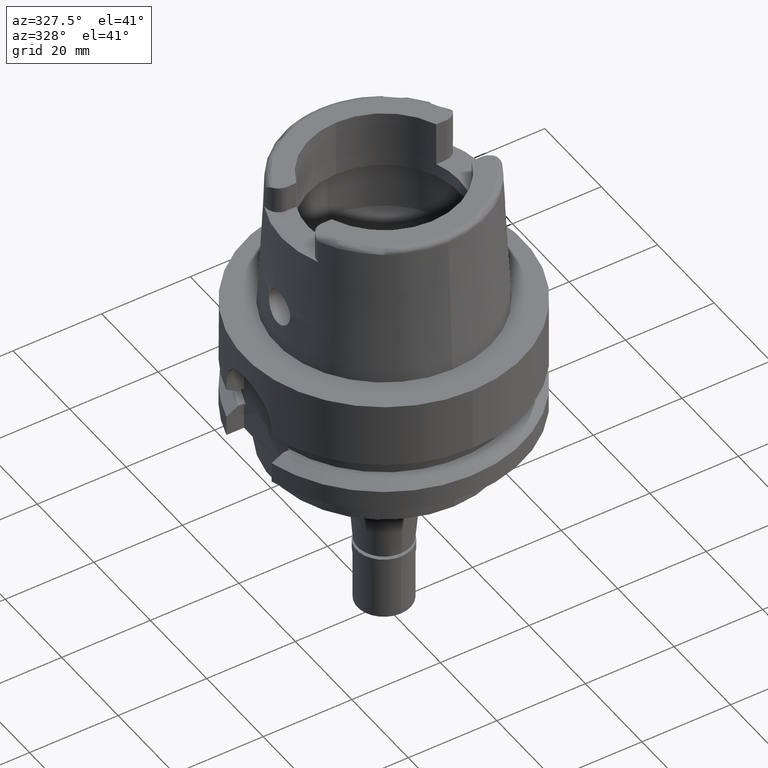
[diagram: clean part render]
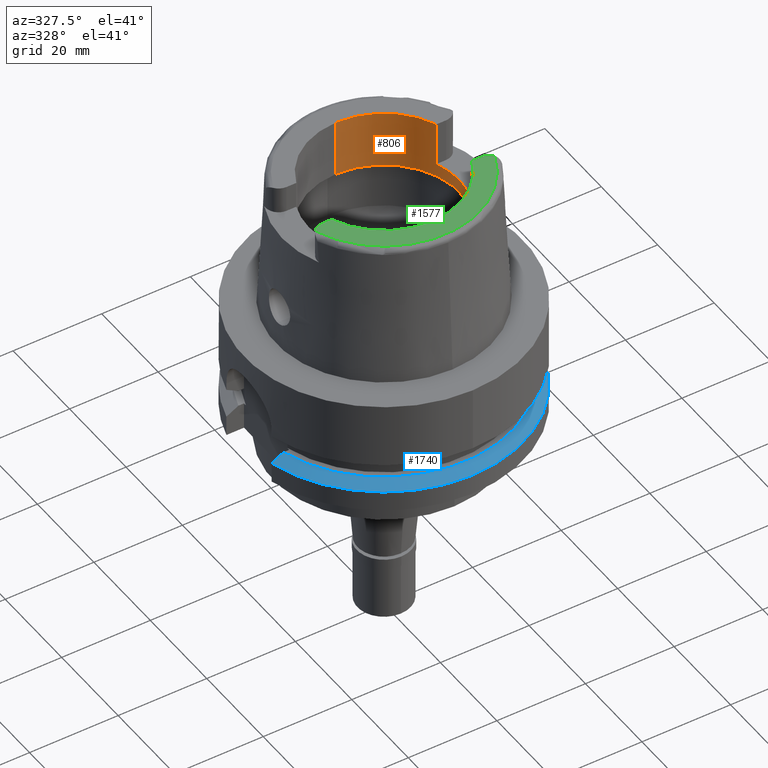
[diagram: same view with three faces highlighted in distinct colors, each labeled with its STEP entity id]
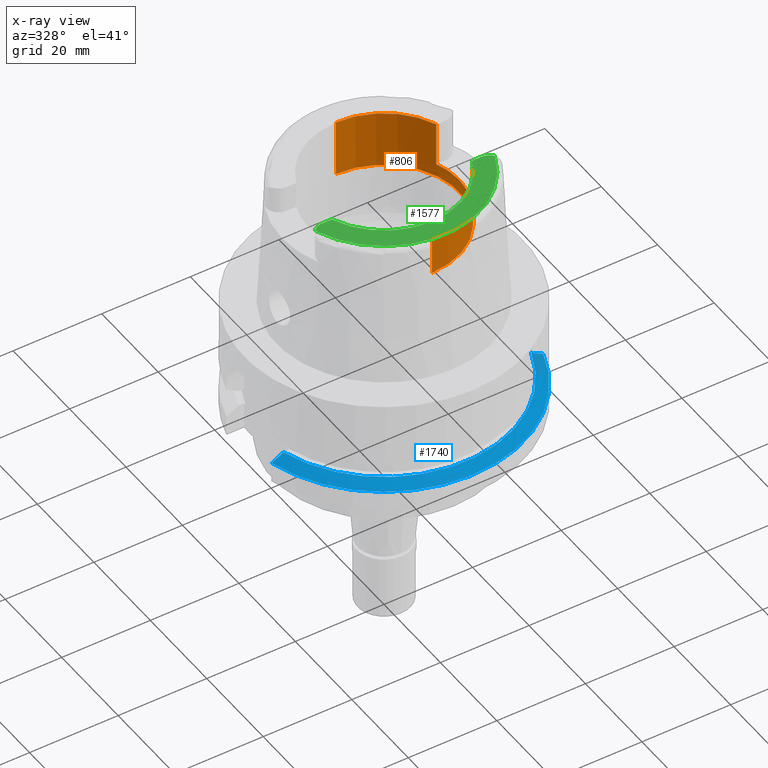
[diagram: x-ray of the same camera — body ghosted, the three highlighted faces saturated]
A machine part, auxiliary view with three faces highlighted in distinct colors.
The next image is the same camera in x-ray (body ghosted, the three faces saturated) — at least one of them is partly hidden behind the body in this view.
Their STEP definitions:

[orange] entity #806 — the highlighted cylindrical surface (partial cylindrical patch) has radius 17 mm, axis along (0, 0, -1).
#138 = VECTOR ( 'NONE', #535, 1000.000000000000000 ) ;
#244 = ORIENTED_EDGE ( 'NONE', *, *, #1883, .F. ) ;
#259 = VERTEX_POINT ( 'NONE', #4073 ) ;
#264 = DIRECTION ( 'NONE',  ( 0.0000000000000000000, 0.0000000000000000000, 1.000000000000000000 ) ) ;
#303 = VERTEX_POINT ( 'NONE', #650 ) ;
#408 = EDGE_CURVE ( 'NONE', #1993, #1226, #767, .T. ) ;
#463 = ORIENTED_EDGE ( 'NONE', *, *, #3265, .F. ) ;
#499 = LINE ( 'NONE', #4810, #5334 ) ;
#535 = DIRECTION ( 'NONE',  ( 0.0000000000000000000, 0.0000000000000000000, -1.000000000000000000 ) ) ;
#650 = CARTESIAN_POINT ( 'NONE',  ( 15.80149043602999903, 6.270000000000000462, 32.00000000000000000 ) ) ;
#688 = CYLINDRICAL_SURFACE ( 'NONE', #4791, 17.00000000000000000 ) ;
#767 = CIRCLE ( 'NONE', #1311, 17.00000000000000000 ) ;
#806 = ADVANCED_FACE ( 'NONE', ( #4630 ), #688, .F. ) ;
#866 = ORIENTED_EDGE ( 'NONE', *, *, #3571, .T. ) ;
#944 = CIRCLE ( 'NONE', #3593, 17.00000000000000000 ) ;
#989 = EDGE_CURVE ( 'NONE', #259, #1993, #499, .T. ) ;
#1075 = CARTESIAN_POINT ( 'NONE',  ( 15.80149043602999903, 6.270000000000000462, 32.00000000000000000 ) ) ;
#1135 = EDGE_CURVE ( 'NONE', #3838, #5256, #2340, .T. ) ;
#1166 = CARTESIAN_POINT ( 'NONE',  ( 0.0000000000000000000, 1.679603085030999862E-14, 32.00000000000000000 ) ) ;
#1222 = LINE ( 'NONE', #4192, #4255 ) ;
#1226 = VERTEX_POINT ( 'NONE', #2720 ) ;
#1311 = AXIS2_PLACEMENT_3D ( 'NONE', #2430, #264, #1894 ) ;
#1592 = DIRECTION ( 'NONE',  ( 0.0000000000000000000, 0.0000000000000000000, -1.000000000000000000 ) ) ;
#1793 = CARTESIAN_POINT ( 'NONE',  ( 0.0000000000000000000, 17.00000000000000000, 32.00000000000000000 ) ) ;
#1883 = EDGE_CURVE ( 'NONE', #3838, #1226, #1222, .T. ) ;
#1894 = DIRECTION ( 'NONE',  ( 0.0000000000000000000, -1.000000000000000000, 0.0000000000000000000 ) ) ;
#1993 = VERTEX_POINT ( 'NONE', #5295 ) ;
#2129 = CARTESIAN_POINT ( 'NONE',  ( 0.0000000000000000000, 1.446675263833000174E-14, 18.99602540378000270 ) ) ;
#2132 = VECTOR ( 'NONE', #4647, 1000.000000000000000 ) ;
#2236 = AXIS2_PLACEMENT_3D ( 'NONE', #3148, #4864, #2382 ) ;
#2237 = DIRECTION ( 'NONE',  ( 0.0000000000000000000, 7.403777974427000140E-14, 1.000000000000000000 ) ) ;
#2263 = CARTESIAN_POINT ( 'NONE',  ( 15.80149043602999903, 6.270000000000000462, 22.00000000000000000 ) ) ;
#2340 = CIRCLE ( 'NONE', #2236, 17.00000000000000000 ) ;
#2382 = DIRECTION ( 'NONE',  ( 0.9294994374136111848, -0.3688235294118045182, 0.0000000000000000000 ) ) ;
#2396 = LINE ( 'NONE', #1075, #138 ) ;
#2430 = CARTESIAN_POINT ( 'NONE',  ( 0.0000000000000000000, 1.679603085030999862E-14, 32.00000000000000000 ) ) ;
#2607 = ORIENTED_EDGE ( 'NONE', *, *, #3478, .F. ) ;
#2665 = CARTESIAN_POINT ( 'NONE',  ( 15.80149043602999903, -6.270000000000000462, 22.00000000000000000 ) ) ;
#2720 = CARTESIAN_POINT ( 'NONE',  ( 15.80149043602999903, -6.270000000000000462, 32.00000000000000000 ) ) ;
#2800 = ORIENTED_EDGE ( 'NONE', *, *, #1135, .T. ) ;
#2905 = LINE ( 'NONE', #3792, #2132 ) ;
#2966 = DIRECTION ( 'NONE',  ( 0.0000000000000000000, 0.0000000000000000000, 1.000000000000000000 ) ) ;
#3034 = ORIENTED_EDGE ( 'NONE', *, *, #3477, .T. ) ;
#3061 = ORIENTED_EDGE ( 'NONE', *, *, #408, .T. ) ;
#3148 = CARTESIAN_POINT ( 'NONE',  ( 0.0000000000000000000, 1.679603085030999862E-14, 22.00000000000000000 ) ) ;
#3265 = EDGE_CURVE ( 'NONE', #303, #5256, #2396, .T. ) ;
#3454 = DIRECTION ( 'NONE',  ( 0.0000000000000000000, 1.000000000000000000, 0.0000000000000000000 ) ) ;
#3477 = EDGE_CURVE ( 'NONE', #303, #4139, #3866, .T. ) ;
#3478 = EDGE_CURVE ( 'NONE', #5453, #4139, #2905, .T. ) ;
#3571 = EDGE_CURVE ( 'NONE', #5453, #259, #944, .T. ) ;
#3593 = AXIS2_PLACEMENT_3D ( 'NONE', #2129, #4731, #3454 ) ;
#3741 = DIRECTION ( 'NONE',  ( 0.0000000000000000000, -1.000000000000000000, 0.0000000000000000000 ) ) ;
#3770 = CARTESIAN_POINT ( 'NONE',  ( 0.0000000000000000000, 1.679603085030999862E-14, 37.15000000000000568 ) ) ;
#3792 = CARTESIAN_POINT ( 'NONE',  ( 0.0000000000000000000, 17.00000000000000000, 18.99602540378000270 ) ) ;
#3817 = EDGE_LOOP ( 'NONE', ( #463, #3034, #2607, #866, #4723, #3061, #244, #2800 ) ) ;
#3838 = VERTEX_POINT ( 'NONE', #2665 ) ;
#3866 = CIRCLE ( 'NONE', #4685, 17.00000000000000000 ) ;
#4073 = CARTESIAN_POINT ( 'NONE',  ( 0.0000000000000000000, -17.00000000000000000, 18.99602540378000270 ) ) ;
#4139 = VERTEX_POINT ( 'NONE', #1793 ) ;
#4163 = DIRECTION ( 'NONE',  ( 0.0000000000000000000, 0.0000000000000000000, 1.000000000000000000 ) ) ;
#4192 = CARTESIAN_POINT ( 'NONE',  ( 15.80149043602999903, -6.270000000000000462, 22.00000000000000000 ) ) ;
#4255 = VECTOR ( 'NONE', #2966, 1000.000000000000000 ) ;
#4340 = CARTESIAN_POINT ( 'NONE',  ( 0.0000000000000000000, 17.00000000000000000, 18.99602540378000270 ) ) ;
#4630 = FACE_OUTER_BOUND ( 'NONE', #3817, .T. ) ;
#4647 = DIRECTION ( 'NONE',  ( 0.0000000000000000000, -7.403777974427000140E-14, 1.000000000000000000 ) ) ;
#4673 = DIRECTION ( 'NONE',  ( 0.9294994374136111848, 0.3688235294118045182, 0.0000000000000000000 ) ) ;
#4685 = AXIS2_PLACEMENT_3D ( 'NONE', #1166, #4163, #4673 ) ;
#4723 = ORIENTED_EDGE ( 'NONE', *, *, #989, .T. ) ;
#4731 = DIRECTION ( 'NONE',  ( 0.0000000000000000000, 0.0000000000000000000, -1.000000000000000000 ) ) ;
#4791 = AXIS2_PLACEMENT_3D ( 'NONE', #3770, #1592, #3741 ) ;
#4810 = CARTESIAN_POINT ( 'NONE',  ( 0.0000000000000000000, -17.00000000000000000, 18.99602540378000270 ) ) ;
#4864 = DIRECTION ( 'NONE',  ( 0.0000000000000000000, 0.0000000000000000000, 1.000000000000000000 ) ) ;
#5256 = VERTEX_POINT ( 'NONE', #2263 ) ;
#5295 = CARTESIAN_POINT ( 'NONE',  ( 0.0000000000000000000, -17.00000000000000000, 32.00000000000000000 ) ) ;
#5334 = VECTOR ( 'NONE', #2237, 1000.000000000000000 ) ;
#5453 = VERTEX_POINT ( 'NONE', #4340 ) ;

[blue] entity #1740 — the highlighted conical surface has half-angle 60 deg.
#61 = B_SPLINE_CURVE_WITH_KNOTS ( 'NONE', 3,
 ( #1988, #2881, #2847, #3734, #1138, #5474 ),
 .UNSPECIFIED., .F., .F.,
 ( 4, 1, 1, 4 ),
 ( 0.0000000000000000000, 0.3333333333333000081, 0.6666666666667000474, 1.000000000000000000 ),
 .UNSPECIFIED. ) ;
#70 = CARTESIAN_POINT ( 'NONE',  ( 30.18691769625000276, -9.000000000000000000, -21.37749907476000288 ) ) ;
#245 = EDGE_CURVE ( 'NONE', #4461, #1420, #586, .T. ) ;
#586 = CIRCLE ( 'NONE', #2677, 28.89759526419000224 ) ;
#698 = CONICAL_SURFACE ( 'NONE', #2156, 30.19879763209999979, 1.047197551196400456 ) ;
#878 = DIRECTION ( 'NONE',  ( 0.0000000000000000000, 0.0000000000000000000, -1.000000000000000000 ) ) ;
#889 = VERTEX_POINT ( 'NONE', #2927 ) ;
#905 = DIRECTION ( 'NONE',  ( 0.0000000000000000000, -1.000000000000000000, 0.0000000000000000000 ) ) ;
#965 = CARTESIAN_POINT ( 'NONE',  ( 0.0000000000000000000, 0.0000000000000000000, -19.87500000000000000 ) ) ;
#1138 = CARTESIAN_POINT ( 'NONE',  ( -28.06112407167000100, -7.999999497709999297, -20.03752483649000027 ) ) ;
#1165 = B_SPLINE_CURVE_WITH_KNOTS ( 'NONE', 3,
 ( #5253, #3937, #4444, #3964, #5335, #70 ),
 .UNSPECIFIED., .F., .F.,
 ( 4, 1, 1, 4 ),
 ( 0.0000000000000000000, 0.3333333333333000081, 0.6666666666667000474, 1.000000000000000000 ),
 .UNSPECIFIED. ) ;
#1171 = DIRECTION ( 'NONE',  ( 0.0000000000000000000, -1.000000000000000000, 0.0000000000000000000 ) ) ;
#1352 = CARTESIAN_POINT ( 'NONE',  ( 0.0000000000000000000, 0.0000000000000000000, -21.37749907476000288 ) ) ;
#1396 = ORIENTED_EDGE ( 'NONE', *, *, #1498, .F. ) ;
#1420 = VERTEX_POINT ( 'NONE', #3292 ) ;
#1498 = EDGE_CURVE ( 'NONE', #4461, #889, #1165, .T. ) ;
#1706 = CIRCLE ( 'NONE', #3984, 31.50000000000000000 ) ;
#1740 = ADVANCED_FACE ( 'NONE', ( #3458 ), #698, .T. ) ;
#1787 = DIRECTION ( 'NONE',  ( 0.0000000000000000000, -1.000000000000000000, 0.0000000000000000000 ) ) ;
#1988 = CARTESIAN_POINT ( 'NONE',  ( -30.46719550067999904, -7.999999895214999768, -21.37749812354000412 ) ) ;
#2101 = CARTESIAN_POINT ( 'NONE',  ( 0.0000000000000000000, 0.0000000000000000000, -20.62624953738000144 ) ) ;
#2156 = AXIS2_PLACEMENT_3D ( 'NONE', #2101, #2909, #1171 ) ;
#2278 = CARTESIAN_POINT ( 'NONE',  ( 27.46035054558000255, -9.000000210183999982, -19.87500000000000000 ) ) ;
#2677 = AXIS2_PLACEMENT_3D ( 'NONE', #965, #2705, #1787 ) ;
#2705 = DIRECTION ( 'NONE',  ( 0.0000000000000000000, 0.0000000000000000000, -1.000000000000000000 ) ) ;
#2847 = CARTESIAN_POINT ( 'NONE',  ( -29.55132669215999996, -7.999999981928000103, -20.86639286357999978 ) ) ;
#2881 = CARTESIAN_POINT ( 'NONE',  ( -30.16036204026000078, -7.999999895214999768, -21.20615605053000152 ) ) ;
#2909 = DIRECTION ( 'NONE',  ( 0.0000000000000000000, 0.0000000000000000000, -1.000000000000000000 ) ) ;
#2927 = CARTESIAN_POINT ( 'NONE',  ( 30.18691769625000276, -9.000000000000000000, -21.37749907476000288 ) ) ;
#3062 = EDGE_CURVE ( 'NONE', #889, #4423, #1706, .T. ) ;
#3126 = ORIENTED_EDGE ( 'NONE', *, *, #3062, .F. ) ;
#3292 = CARTESIAN_POINT ( 'NONE',  ( -27.76817314625000321, -7.999999497709999297, -19.87500000000000000 ) ) ;
#3368 = EDGE_CURVE ( 'NONE', #4423, #1420, #61, .T. ) ;
#3458 = FACE_OUTER_BOUND ( 'NONE', #3857, .T. ) ;
#3592 = CARTESIAN_POINT ( 'NONE',  ( -30.46719550067999904, -7.999999895214999768, -21.37749812354000412 ) ) ;
#3734 = CARTESIAN_POINT ( 'NONE',  ( -28.65165997763000050, -8.000000220430999676, -20.36554601773000073 ) ) ;
#3857 = EDGE_LOOP ( 'NONE', ( #3126, #1396, #4315, #4253 ) ) ;
#3937 = CARTESIAN_POINT ( 'NONE',  ( 27.75547467001999991, -9.000000210183999982, -20.03691552780999885 ) ) ;
#3964 = CARTESIAN_POINT ( 'NONE',  ( 29.25977639314999834, -8.999999703796000006, -20.86495739503000024 ) ) ;
#3984 = AXIS2_PLACEMENT_3D ( 'NONE', #1352, #878, #905 ) ;
#4253 = ORIENTED_EDGE ( 'NONE', *, *, #3368, .F. ) ;
#4315 = ORIENTED_EDGE ( 'NONE', *, *, #245, .T. ) ;
#4423 = VERTEX_POINT ( 'NONE', #3592 ) ;
#4444 = CARTESIAN_POINT ( 'NONE',  ( 28.35092875228999887, -8.999999994551000526, -20.36410744448000187 ) ) ;
#4461 = VERTEX_POINT ( 'NONE', #2278 ) ;
#5253 = CARTESIAN_POINT ( 'NONE',  ( 27.46035054558000255, -9.000000210183999982, -19.87500000000000000 ) ) ;
#5335 = CARTESIAN_POINT ( 'NONE',  ( 29.87612147435000054, -9.000000694776000287, -21.20554642629999620 ) ) ;
#5474 = CARTESIAN_POINT ( 'NONE',  ( -27.76817314625000321, -7.999999497709999297, -19.87500000000000000 ) ) ;

[green] entity #1577 — the highlighted planar face has unit normal (0, 0, -1).
#48 = CIRCLE ( 'NONE', #1477, 2.880000000000003446 ) ;
#83 = DIRECTION ( 'NONE',  ( -0.7912216523763718756, 0.6115294733786784676, 0.0000000000000000000 ) ) ;
#89 = LINE ( 'NONE', #2731, #3496 ) ;
#186 = VERTEX_POINT ( 'NONE', #3987 ) ;
#217 = VECTOR ( 'NONE', #4022, 1000.000000000000000 ) ;
#239 = CARTESIAN_POINT ( 'NONE',  ( 0.0000000000000000000, 1.616533774874999676E-14, 32.00000000000000000 ) ) ;
#264 = DIRECTION ( 'NONE',  ( 0.0000000000000000000, 0.0000000000000000000, 1.000000000000000000 ) ) ;
#290 = VERTEX_POINT ( 'NONE', #3337 ) ;
#319 = ORIENTED_EDGE ( 'NONE', *, *, #1792, .F. ) ;
#341 = CIRCLE ( 'NONE', #3969, 21.57348458609000375 ) ;
#397 = DIRECTION ( 'NONE',  ( -0.0009289215035748248301, -0.9999995685523269673, 0.0000000000000000000 ) ) ;
#408 = EDGE_CURVE ( 'NONE', #1993, #1226, #767, .T. ) ;
#527 = DIRECTION ( 'NONE',  ( 0.0000000000000000000, 0.0000000000000000000, -1.000000000000000000 ) ) ;
#604 = DIRECTION ( 'NONE',  ( -0.9294994374136111848, -0.3688235294118045182, 0.0000000000000000000 ) ) ;
#767 = CIRCLE ( 'NONE', #1311, 17.00000000000000000 ) ;
#832 = AXIS2_PLACEMENT_3D ( 'NONE', #5514, #1595, #604 ) ;
#892 = CARTESIAN_POINT ( 'NONE',  ( 17.98999999999999844, -6.270000000000000462, 32.00000000000000000 ) ) ;
#1226 = VERTEX_POINT ( 'NONE', #2720 ) ;
#1311 = AXIS2_PLACEMENT_3D ( 'NONE', #2430, #264, #1894 ) ;
#1382 = CARTESIAN_POINT ( 'NONE',  ( 20.26871835884000106, -7.388795116669998997, 32.00000000000000000 ) ) ;
#1435 = CARTESIAN_POINT ( 'NONE',  ( -17.98999999999999844, -6.270000000000000462, 32.00000000000000000 ) ) ;
#1477 = AXIS2_PLACEMENT_3D ( 'NONE', #2270, #527, #83 ) ;
#1497 = ORIENTED_EDGE ( 'NONE', *, *, #5318, .F. ) ;
#1528 = DIRECTION ( 'NONE',  ( 0.0000000000000000000, -1.000000000000000000, 0.0000000000000000000 ) ) ;
#1557 = PLANE ( 'NONE',  #4161 ) ;
#1558 = VERTEX_POINT ( 'NONE', #1382 ) ;
#1577 = ADVANCED_FACE ( 'NONE', ( #2823 ), #1557, .F. ) ;
#1595 = DIRECTION ( 'NONE',  ( 0.0000000000000000000, 0.0000000000000000000, 1.000000000000000000 ) ) ;
#1792 = EDGE_CURVE ( 'NONE', #1558, #186, #341, .T. ) ;
#1864 = EDGE_LOOP ( 'NONE', ( #319, #4882, #4285, #5136, #1497, #3747, #4875 ) ) ;
#1892 = DIRECTION ( 'NONE',  ( -1.000000000000000000, 8.603746955300000159E-14, 0.0000000000000000000 ) ) ;
#1894 = DIRECTION ( 'NONE',  ( 0.0000000000000000000, -1.000000000000000000, 0.0000000000000000000 ) ) ;
#1909 = CIRCLE ( 'NONE', #832, 17.00000000000000000 ) ;
#1993 = VERTEX_POINT ( 'NONE', #5295 ) ;
#2044 = CARTESIAN_POINT ( 'NONE',  ( 17.98999999999999844, -9.150000000000000355, 32.00000000000000000 ) ) ;
#2270 = CARTESIAN_POINT ( 'NONE',  ( -17.98999999999999844, -9.150000000000000355, 32.00000000000000000 ) ) ;
#2345 = DIRECTION ( 'NONE',  ( 0.0000000000000000000, 0.0000000000000000000, -1.000000000000000000 ) ) ;
#2351 = CARTESIAN_POINT ( 'NONE',  ( 17.98999999999999844, -6.270000000000000462, 32.00000000000000000 ) ) ;
#2430 = CARTESIAN_POINT ( 'NONE',  ( 0.0000000000000000000, 1.679603085030999862E-14, 32.00000000000000000 ) ) ;
#2720 = CARTESIAN_POINT ( 'NONE',  ( 15.80149043602999903, -6.270000000000000462, 32.00000000000000000 ) ) ;
#2731 = CARTESIAN_POINT ( 'NONE',  ( -15.80149043602999903, -6.270000000000000462, 32.00000000000000000 ) ) ;
#2823 = FACE_OUTER_BOUND ( 'NONE', #1864, .T. ) ;
#3111 = VERTEX_POINT ( 'NONE', #1435 ) ;
#3337 = CARTESIAN_POINT ( 'NONE',  ( -15.80149043602999903, -6.270000000000000462, 32.00000000000000000 ) ) ;
#3392 = EDGE_CURVE ( 'NONE', #5043, #1558, #4778, .T. ) ;
#3496 = VECTOR ( 'NONE', #1892, 1000.000000000000000 ) ;
#3744 = EDGE_CURVE ( 'NONE', #186, #3111, #48, .T. ) ;
#3747 = ORIENTED_EDGE ( 'NONE', *, *, #4474, .T. ) ;
#3778 = AXIS2_PLACEMENT_3D ( 'NONE', #2044, #5099, #4702 ) ;
#3969 = AXIS2_PLACEMENT_3D ( 'NONE', #5131, #5507, #397 ) ;
#3987 = CARTESIAN_POINT ( 'NONE',  ( -20.26871835884000106, -7.388795116668999796, 32.00000000000000000 ) ) ;
#4022 = DIRECTION ( 'NONE',  ( -1.000000000000000000, -8.481995819140000226E-14, 0.0000000000000000000 ) ) ;
#4090 = EDGE_CURVE ( 'NONE', #5043, #1226, #4887, .T. ) ;
#4161 = AXIS2_PLACEMENT_3D ( 'NONE', #239, #2345, #1528 ) ;
#4285 = ORIENTED_EDGE ( 'NONE', *, *, #4090, .T. ) ;
#4474 = EDGE_CURVE ( 'NONE', #290, #3111, #89, .T. ) ;
#4702 = DIRECTION ( 'NONE',  ( 0.0000000000000000000, 1.000000000000000000, 0.0000000000000000000 ) ) ;
#4778 = CIRCLE ( 'NONE', #3778, 2.880000000000000782 ) ;
#4875 = ORIENTED_EDGE ( 'NONE', *, *, #3744, .F. ) ;
#4882 = ORIENTED_EDGE ( 'NONE', *, *, #3392, .F. ) ;
#4887 = LINE ( 'NONE', #2351, #217 ) ;
#5043 = VERTEX_POINT ( 'NONE', #892 ) ;
#5099 = DIRECTION ( 'NONE',  ( 0.0000000000000000000, 0.0000000000000000000, -1.000000000000000000 ) ) ;
#5131 = CARTESIAN_POINT ( 'NONE',  ( 0.0000000000000000000, 1.601838013285000038E-14, 32.00000000000000000 ) ) ;
#5136 = ORIENTED_EDGE ( 'NONE', *, *, #408, .F. ) ;
#5295 = CARTESIAN_POINT ( 'NONE',  ( 0.0000000000000000000, -17.00000000000000000, 32.00000000000000000 ) ) ;
#5318 = EDGE_CURVE ( 'NONE', #290, #1993, #1909, .T. ) ;
#5507 = DIRECTION ( 'NONE',  ( 0.0000000000000000000, 0.0000000000000000000, -1.000000000000000000 ) ) ;
#5514 = CARTESIAN_POINT ( 'NONE',  ( 0.0000000000000000000, 1.679603085030999862E-14, 32.00000000000000000 ) ) ;